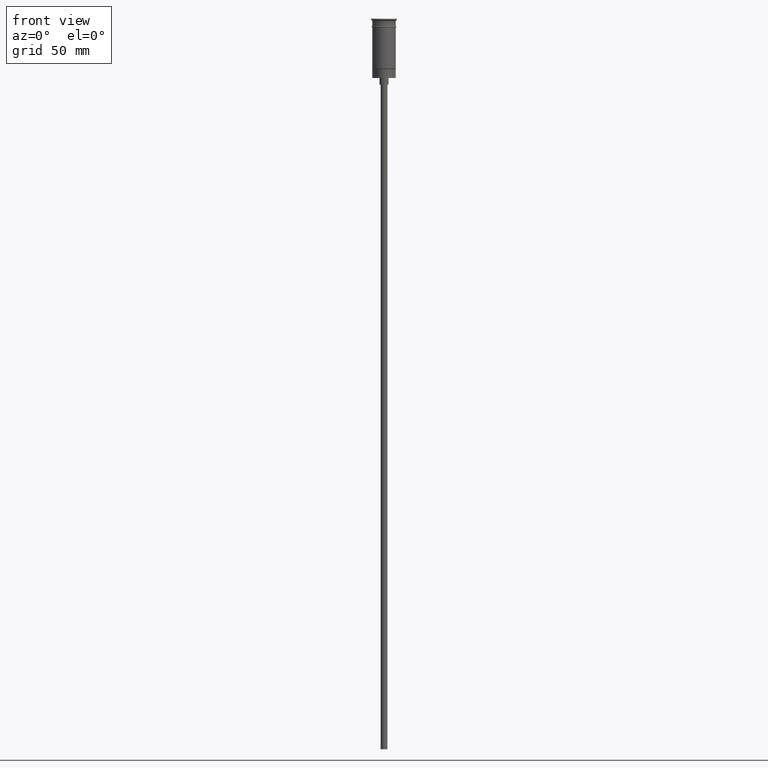
[diagram: clean part render]
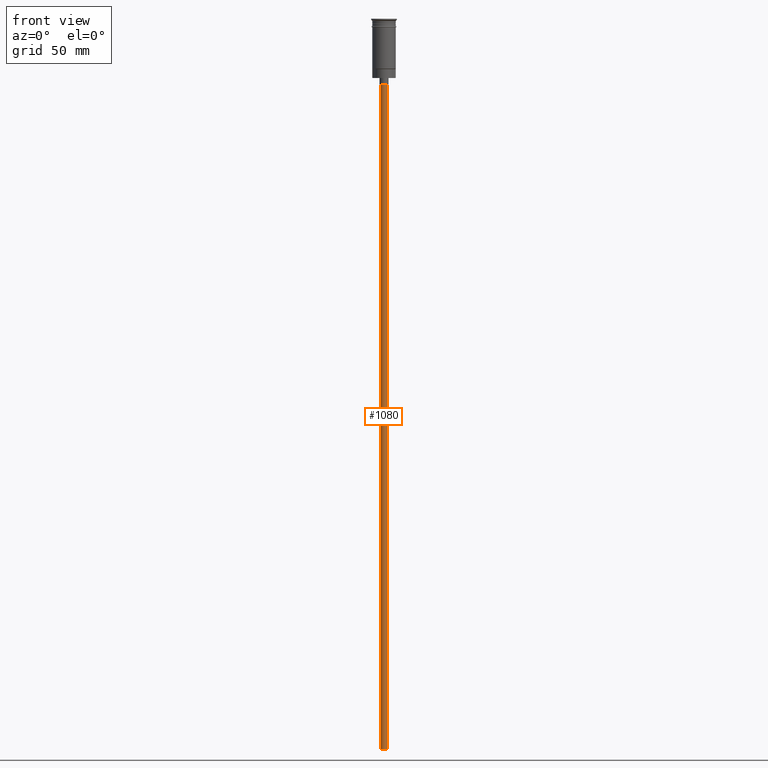
[diagram: same view with one face highlighted and labeled with its STEP entity id]
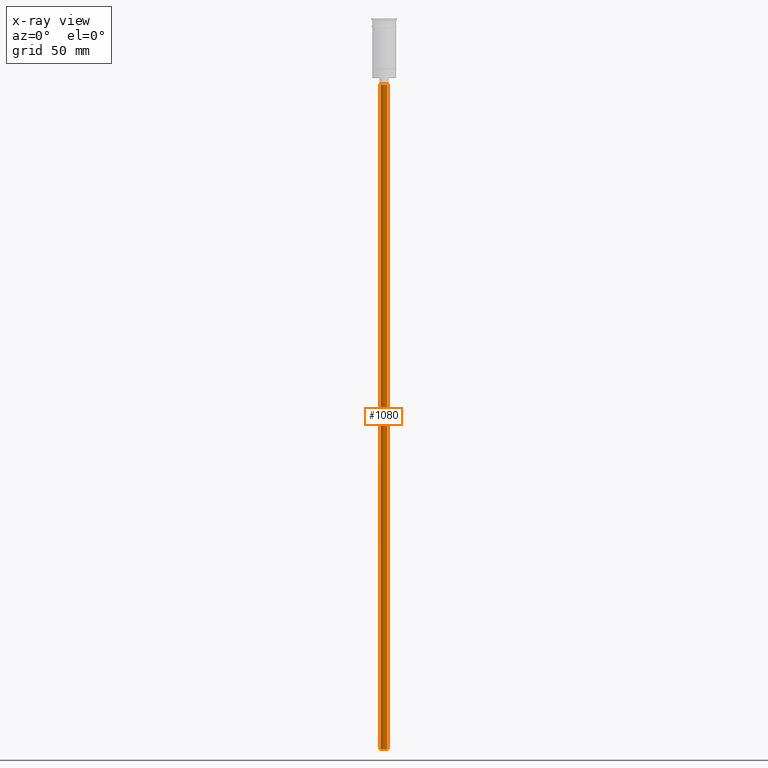
[diagram: x-ray of the same camera — body ghosted, the highlighted face saturated]
A machine part, front view. The second image highlights one B-rep face of the part: STEP entity #1080.
The next image is the same camera in x-ray: the body ghosted, the highlighted face saturated — about 0% of this face is hidden behind the body in this view.
In plain terms, the highlighted cylindrical surface (edge-blend (fillet) strip) has radius 1.5 mm, axis along (-0, -0, 1).
Its self-contained STEP definition (entity closure, byte-faithful):
#22 = VERTEX_POINT ( 'NONE', #96 ) ;
#51 = FACE_OUTER_BOUND ( 'NONE', #934, .T. ) ;
#91 = LINE ( 'NONE', #99, #311 ) ;
#96 = CARTESIAN_POINT ( 'NONE',  ( -1.500000000000000222, 1.836970198721030181E-16, -29.50000000000000000 ) ) ;
#99 = CARTESIAN_POINT ( 'NONE',  ( 1.500000000000000222, 0.000000000000000000, -326.5000000000000000 ) ) ;
#278 = CARTESIAN_POINT ( 'NONE',  ( 1.500000000000000222, 0.000000000000000000, -326.5000000000000000 ) ) ;
#311 = VECTOR ( 'NONE', #333, 1000.000000000000000 ) ;
#333 = DIRECTION ( 'NONE',  ( -0.000000000000000000, -0.000000000000000000, 1.000000000000000000 ) ) ;
#433 = DIRECTION ( 'NONE',  ( 1.000000000000000000, 0.000000000000000000, 0.000000000000000000 ) ) ;
#439 = CARTESIAN_POINT ( 'NONE',  ( 1.500000000000000222, 0.000000000000000000, -29.50000000000000000 ) ) ;
#451 = ORIENTED_EDGE ( 'NONE', *, *, #1176, .T. ) ;
#452 = EDGE_CURVE ( 'NONE', #1244, #1476, #91, .T. ) ;
#493 = CARTESIAN_POINT ( 'NONE',  ( 0.000000000000000000, 0.000000000000000000, -29.50000000000000000 ) ) ;
#548 = CYLINDRICAL_SURFACE ( 'NONE', #915, 1.500000000000000222 ) ;
#596 = CARTESIAN_POINT ( 'NONE',  ( -1.500000000000000222, 1.836970198721030181E-16, -326.5000000000000000 ) ) ;
#681 = DIRECTION ( 'NONE',  ( -0.000000000000000000, -0.000000000000000000, 1.000000000000000000 ) ) ;
#693 = EDGE_CURVE ( 'NONE', #1348, #22, #1336, .T. ) ;
#699 = CIRCLE ( 'NONE', #1122, 1.500000000000000222 ) ;
#818 = CARTESIAN_POINT ( 'NONE',  ( 0.000000000000000000, 0.000000000000000000, -326.5000000000000000 ) ) ;
#915 = AXIS2_PLACEMENT_3D ( 'NONE', #818, #1537, #433 ) ;
#934 = EDGE_LOOP ( 'NONE', ( #1097, #1106, #1007, #451 ) ) ;
#994 = CIRCLE ( 'NONE', #1534, 1.500000000000000222 ) ;
#1000 = EDGE_CURVE ( 'NONE', #1244, #1348, #994, .T. ) ;
#1007 = ORIENTED_EDGE ( 'NONE', *, *, #452, .T. ) ;
#1080 = ADVANCED_FACE ( 'NONE', ( #51 ), #548, .T. ) ;
#1097 = ORIENTED_EDGE ( 'NONE', *, *, #693, .F. ) ;
#1106 = ORIENTED_EDGE ( 'NONE', *, *, #1000, .F. ) ;
#1122 = AXIS2_PLACEMENT_3D ( 'NONE', #493, #1469, #1366 ) ;
#1176 = EDGE_CURVE ( 'NONE', #1476, #22, #699, .T. ) ;
#1244 = VERTEX_POINT ( 'NONE', #278 ) ;
#1248 = VECTOR ( 'NONE', #681, 1000.000000000000000 ) ;
#1336 = LINE ( 'NONE', #596, #1248 ) ;
#1348 = VERTEX_POINT ( 'NONE', #1493 ) ;
#1366 = DIRECTION ( 'NONE',  ( -1.000000000000000000, 0.000000000000000000, 0.000000000000000000 ) ) ;
#1424 = DIRECTION ( 'NONE',  ( -1.000000000000000000, 0.000000000000000000, 0.000000000000000000 ) ) ;
#1439 = DIRECTION ( 'NONE',  ( 0.000000000000000000, 0.000000000000000000, -1.000000000000000000 ) ) ;
#1469 = DIRECTION ( 'NONE',  ( 0.000000000000000000, 0.000000000000000000, -1.000000000000000000 ) ) ;
#1476 = VERTEX_POINT ( 'NONE', #439 ) ;
#1493 = CARTESIAN_POINT ( 'NONE',  ( -1.500000000000000222, 1.836970198721030181E-16, -326.5000000000000000 ) ) ;
#1534 = AXIS2_PLACEMENT_3D ( 'NONE', #1544, #1439, #1424 ) ;
#1537 = DIRECTION ( 'NONE',  ( -0.000000000000000000, -0.000000000000000000, 1.000000000000000000 ) ) ;
#1544 = CARTESIAN_POINT ( 'NONE',  ( 0.000000000000000000, 0.000000000000000000, -326.5000000000000000 ) ) ;